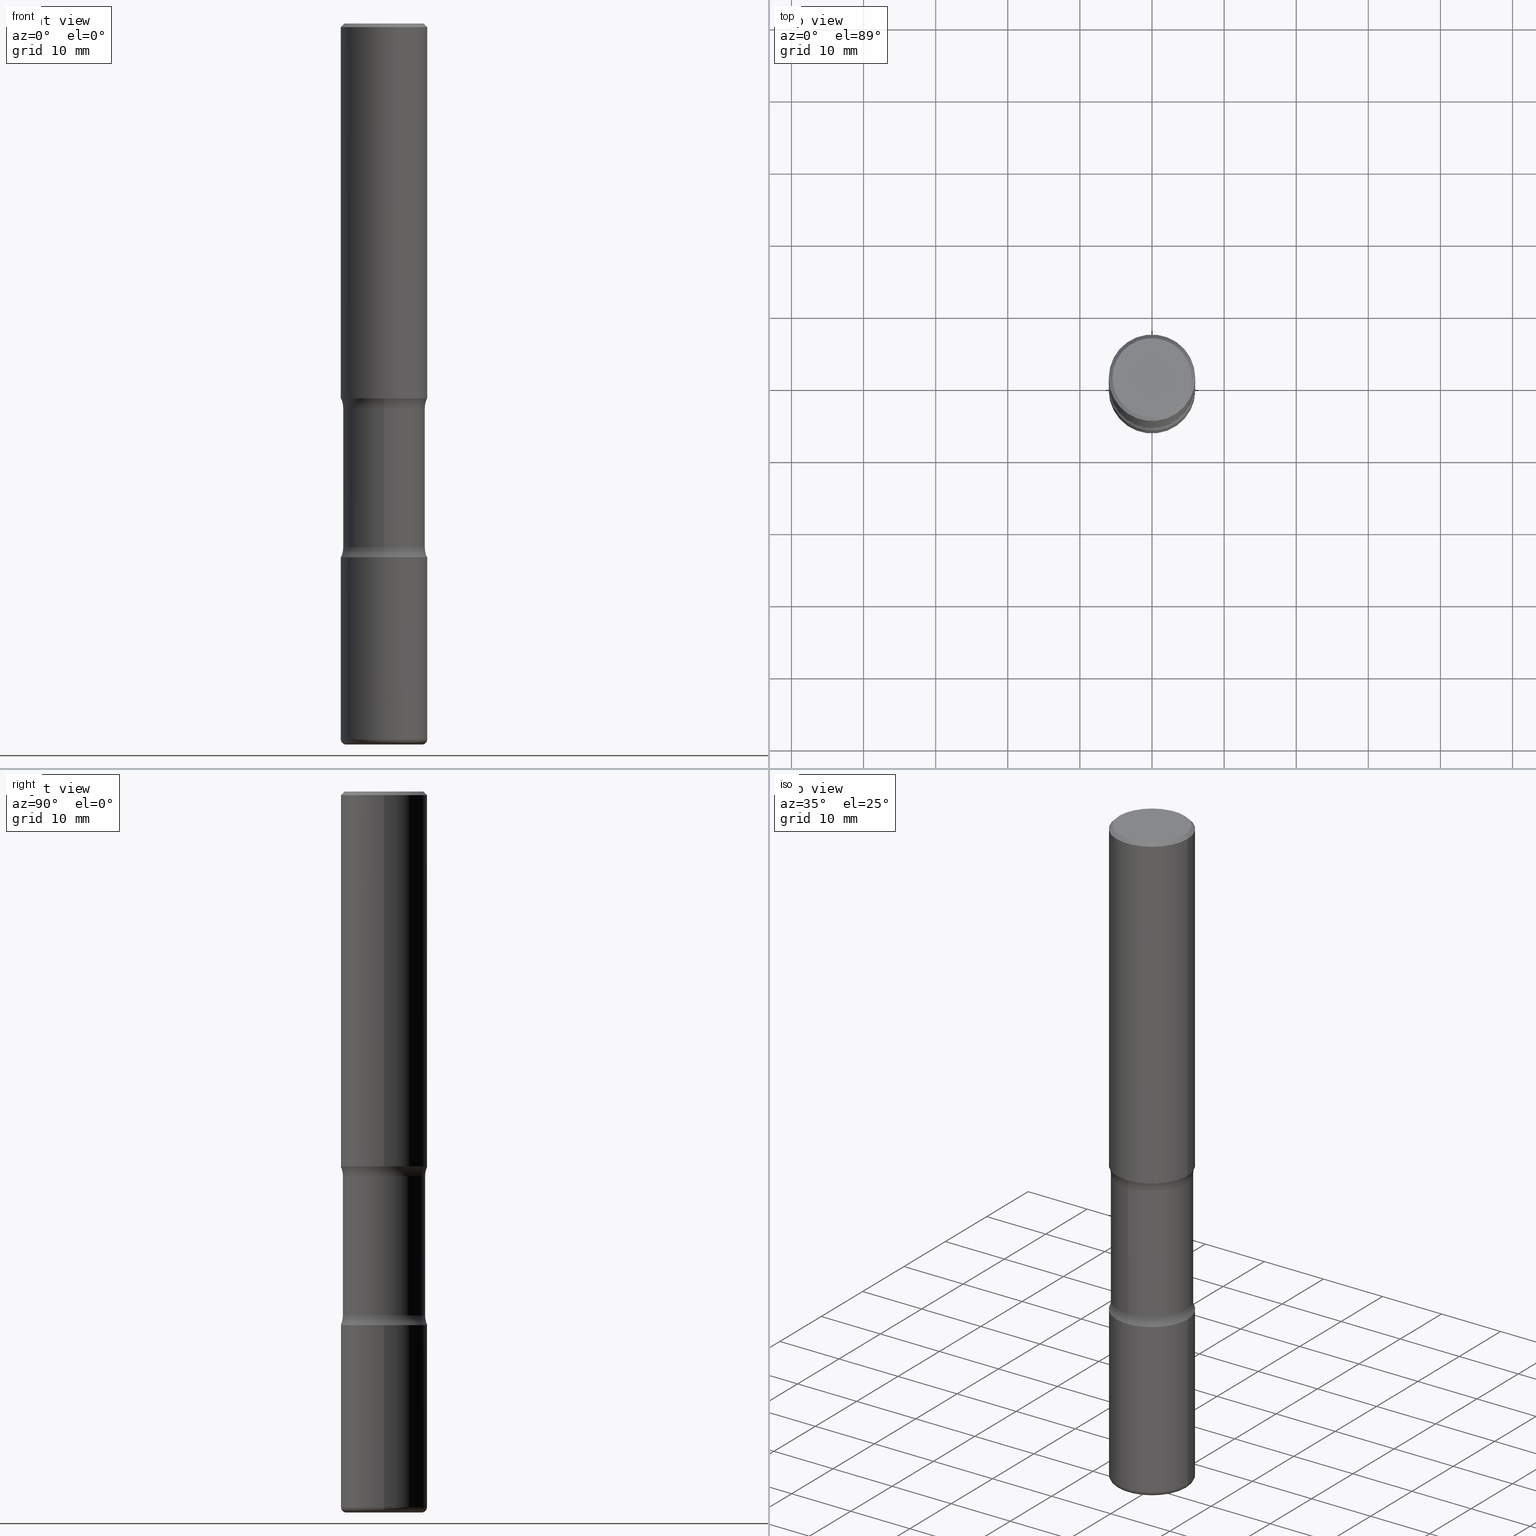
[diagram: canonical four-view strip — front | top / right | iso, engineering-drawing reading convention]
A machine part, canonical four-view strip (front | top / right | iso — engineering-drawing reading convention). The complete STEP part file that produces these views, byte-faithful:
ISO-10303-21;
HEADER;
FILE_DESCRIPTION (( 'STEP AP203' ),
    '1' );
FILE_NAME ('47692.STEP',
    '2024-03-02T07:16:59',
    ( '' ),
    ( '' ),
    'SwSTEP 2.0',
    'SolidWorks 2023',
    '' );
FILE_SCHEMA (( 'CONFIG_CONTROL_DESIGN' ));
ENDSEC;

DATA;
#1 = DIRECTION ( 'NONE',  ( -2.445468806185136597E-29, 3.491481338843145583E-15, 1.000000000000000000 ) ) ;
#2 = EDGE_LOOP ( 'NONE', ( #503, #495, #133, #348 ) ) ;
#3 = ORIENTED_EDGE ( 'NONE', *, *, #37, .F. ) ;
#4 = ORIENTED_EDGE ( 'NONE', *, *, #148, .T. ) ;
#5 = DIRECTION ( 'NONE',  ( 1.000000000000000000, -6.982962677686266711E-15, 4.876217060660159599E-29 ) ) ;
#6 = CIRCLE ( 'NONE', #163, 0.2362000000000002431 ) ;
#7 = PERSON_AND_ORGANIZATION_ROLE ( 'creator' ) ;
#8 = CARTESIAN_POINT ( 'NONE',  ( -0.2362000000000002153, 1.678301941865358169E-15, -1.161852468318209878E-29 ) ) ;
#9 = CARTESIAN_POINT ( 'NONE',  ( 7.124628819939777829E-29, -1.017208173258562247E-14, -2.913400000000000212 ) ) ;
#10 = DATE_AND_TIME ( #48, #184 ) ;
#11 = DIRECTION ( 'NONE',  ( -2.445468806185136597E-29, 3.491481338843145583E-15, 1.000000000000000000 ) ) ;
#12 = PERSON_AND_ORGANIZATION ( #519, #96 ) ;
#13 = VERTEX_POINT ( 'NONE', #47 ) ;
#14 = EDGE_LOOP ( 'NONE', ( #294, #128, #289, #465 ) ) ;
#15 = DIRECTION ( 'NONE',  ( 1.000000000000000000, -6.982962677686269077E-15, 0.000000000000000000 ) ) ;
#16 = DIRECTION ( 'NONE',  ( -2.445468806185136877E-29, 3.491481338843145188E-15, 1.000000000000000000 ) ) ;
#17 = VERTEX_POINT ( 'NONE', #442 ) ;
#18 = AXIS2_PLACEMENT_3D ( 'NONE', #476, #434, #341 ) ;
#19 = AXIS2_PLACEMENT_3D ( 'NONE', #65, #240, #371 ) ;
#20 = DIRECTION ( 'NONE',  ( 2.525985086076564115E-29, -3.376177443336566513E-15, -1.000000000000000000 ) ) ;
#21 = FACE_OUTER_BOUND ( 'NONE', #193, .T. ) ;
#22 = ADVANCED_FACE ( 'NONE', ( #224 ), #552, .F. ) ;
#23 = CARTESIAN_POINT ( 'NONE',  ( 6.990709676060807691E-29, -9.993088279580958225E-15, -2.860383398826405354 ) ) ;
#24 = VERTEX_POINT ( 'NONE', #185 ) ;
#25 = CARTESIAN_POINT ( 'NONE',  ( 5.070539682259229331E-29, -7.426630284172150130E-15, -2.100216601173595432 ) ) ;
#26 = DIRECTION ( 'NONE',  ( 2.525985086076564115E-29, -3.376177443336566513E-15, -1.000000000000000000 ) ) ;
#27 = ORIENTED_EDGE ( 'NONE', *, *, #116, .F. ) ;
#28 = DIRECTION ( 'NONE',  ( 1.000000000000000000, -6.982962677686266711E-15, 4.883557194083113462E-29 ) ) ;
#29 = ADVANCED_FACE ( 'NONE', ( #257 ), #188, .F. ) ;
#30 = AXIS2_PLACEMENT_3D ( 'NONE', #187, #11, #320 ) ;
#31 = CIRCLE ( 'NONE', #560, 0.2243999999999999606 ) ;
#32 = CARTESIAN_POINT ( 'NONE',  ( -1.043851414335219820E-46, 1.490343170380447200E-32, 4.268512490100411279E-18 ) ) ;
#33 = EDGE_CURVE ( 'NONE', #398, #160, #290, .T. ) ;
#34 = ADVANCED_FACE ( 'NONE', ( #352 ), #81, .T. ) ;
#35 = CARTESIAN_POINT ( 'NONE',  ( -0.2361999999999998823, 1.579546157692632438E-15, -0.02000000000000006981 ) ) ;
#36 = CIRCLE ( 'NONE', #205, 0.2362000000000002431 ) ;
#37 = EDGE_CURVE ( 'NONE', #227, #372, #523, .T. ) ;
#38 = APPROVAL_PERSON_ORGANIZATION ( #67, #344, #415 ) ;
#39 = TOROIDAL_SURFACE ( 'NONE', #361, 0.3493999999999999884, 0.1250000000000000000 ) ;
#40 = CARTESIAN_POINT ( 'NONE',  ( 0.000000000000000000, 0.000000000000000000, 0.000000000000000000 ) ) ;
#41 = PLANE ( 'NONE',  #18 ) ;
#42 = DIRECTION ( 'NONE',  ( 2.525985086076564115E-29, -3.376177443336566513E-15, -1.000000000000000000 ) ) ;
#43 = ORIENTED_EDGE ( 'NONE', *, *, #33, .T. ) ;
#44 = DIRECTION ( 'NONE',  ( 6.982962677686265922E-15, 1.000000000000000000, -3.376177443336566513E-15 ) ) ;
#45 = ORIENTED_EDGE ( 'NONE', *, *, #500, .T. ) ;
#46 = ORIENTED_EDGE ( 'NONE', *, *, #500, .F. ) ;
#47 = CARTESIAN_POINT ( 'NONE',  ( -1.620449627073587747E-15, -0.2362000000000074318, -2.047199999999999243 ) ) ;
#48 = CALENDAR_DATE ( 2024, 2, 3 ) ;
#49 = AXIS2_PLACEMENT_3D ( 'NONE', #478, #356, #527 ) ;
#50 = AXIS2_PLACEMENT_3D ( 'NONE', #239, #20, #314 ) ;
#51 = ORIENTED_EDGE ( 'NONE', *, *, #180, .F. ) ;
#52 = APPROVAL_STATUS ( 'not_yet_approved' ) ;
#53 = ORIENTED_EDGE ( 'NONE', *, *, #457, .T. ) ;
#54 = DIRECTION ( 'NONE',  ( -2.445468806185136597E-29, 3.491481338843145583E-15, 1.000000000000000000 ) ) ;
#55 = DIRECTION ( 'NONE',  ( 6.982962677686265922E-15, 1.000000000000000000, -2.434802133390609421E-15 ) ) ;
#56 = DIRECTION ( 'NONE',  ( 1.000000000000000000, -6.982962677686267499E-15, 0.000000000000000000 ) ) ;
#57 = CARTESIAN_POINT ( 'NONE',  ( 1.566976824872894642E-15, 0.2243999999999863049, -3.937000000000000721 ) ) ;
#58 = ORIENTED_EDGE ( 'NONE', *, *, #329, .T. ) ;
#59 = AXIS2_PLACEMENT_3D ( 'NONE', #68, #26, #55 ) ;
#60 = AXIS2_PLACEMENT_3D ( 'NONE', #118, #186, #146 ) ;
#61 = CARTESIAN_POINT ( 'NONE',  ( 0.2361999999999998823, -1.690279253850498179E-15, -0.02000000000000006981 ) ) ;
#62 = VERTEX_POINT ( 'NONE', #429 ) ;
#63 = APPROVAL ( #52, 'UNSPECIFIED' ) ;
#64 = CYLINDRICAL_SURFACE ( 'NONE', #244, 0.2362000000000002153 ) ;
#65 = CARTESIAN_POINT ( 'NONE',  ( 9.627810689950881427E-29, -1.374596203102546184E-14, -3.936999999999999389 ) ) ;
#66 = EDGE_LOOP ( 'NONE', ( #3, #213, #4, #406 ) ) ;
#67 = PERSON_AND_ORGANIZATION ( #519, #96 ) ;
#68 = CARTESIAN_POINT ( 'NONE',  ( 6.990709676060807691E-29, -9.993088279580958225E-15, -2.860383398826405354 ) ) ;
#69 = ADVANCED_FACE ( 'NONE', ( #513 ), #436, .T. ) ;
#70 = APPROVAL_DATE_TIME ( #328, #344 ) ;
#71 = AXIS2_PLACEMENT_3D ( 'NONE', #470, #394, #137 ) ;
#72 = AXIS2_PLACEMENT_3D ( 'NONE', #448, #203, #56 ) ;
#73 = CARTESIAN_POINT ( 'NONE',  ( 0.2062000000000002442, -1.508110449499907983E-14, -3.907000000000000028 ) ) ;
#74 = EDGE_CURVE ( 'NONE', #17, #105, #173, .T. ) ;
#75 = CARTESIAN_POINT ( 'NONE',  ( 1.566976824872867821E-15, 0.2243999999999899686, -2.860383398826405799 ) ) ;
#76 = SHAPE_DEFINITION_REPRESENTATION ( #337, #555 ) ;
#77 = CARTESIAN_POINT ( 'NONE',  ( 5.006363740022212241E-29, -7.147760596879688202E-15, -2.047200000000000131 ) ) ;
#78 = VERTEX_POINT ( 'NONE', #217 ) ;
#79 = DIRECTION ( 'NONE',  ( -2.445468806185136877E-29, 3.491481338843145188E-15, 1.000000000000000000 ) ) ;
#80 = CYLINDRICAL_SURFACE ( 'NONE', #30, 0.2361999999999999933 ) ;
#81 = CYLINDRICAL_SURFACE ( 'NONE', #418, 0.2243999999999999329 ) ;
#82 = AXIS2_PLACEMENT_3D ( 'NONE', #85, #261, #5 ) ;
#83 = VERTEX_POINT ( 'NONE', #343 ) ;
#84 =( GEOMETRIC_REPRESENTATION_CONTEXT ( 3 ) GLOBAL_UNCERTAINTY_ASSIGNED_CONTEXT ( ( #121 ) ) GLOBAL_UNIT_ASSIGNED_CONTEXT ( ( #286, #482, #530 ) ) REPRESENTATION_CONTEXT ( 'NONE', 'WORKASPACE' ) );
#85 = CARTESIAN_POINT ( 'NONE',  ( -1.043851414335219820E-46, 1.490343170380447200E-32, 4.268512490100411279E-18 ) ) ;
#86 = DIRECTION ( 'NONE',  ( 2.525985086076564115E-29, -3.376177443336566513E-15, -1.000000000000000000 ) ) ;
#87 = EDGE_LOOP ( 'NONE', ( #533, #327, #45, #392 ) ) ;
#88 = ADVANCED_FACE ( 'NONE', ( #481 ), #296, .T. ) ;
#89 = APPLICATION_CONTEXT ( 'configuration controlled 3d designs of mechanical parts and assemblies' ) ;
#90 = ORIENTED_EDGE ( 'NONE', *, *, #350, .T. ) ;
#91 = DIRECTION ( 'NONE',  ( 0.7071067811865472397, -7.319954787623254468E-15, -0.7071067811865477948 ) ) ;
#92 = DIRECTION ( 'NONE',  ( 2.525985086076564115E-29, -3.376177443336566513E-15, -1.000000000000000000 ) ) ;
#93 = CARTESIAN_POINT ( 'NONE',  ( 0.2361999999999999933, -1.649375784469496131E-15, 1.151752954443000088E-29 ) ) ;
#94 = DIRECTION ( 'NONE',  ( 1.000000000000000000, -6.860497997771530774E-15, 4.842210945089756248E-29 ) ) ;
#95 = AXIS2_PLACEMENT_3D ( 'NONE', #317, #142, #354 ) ;
#96 = ORGANIZATION ( 'UNSPECIFIED', 'UNSPECIFIED', '' ) ;
#97 = CARTESIAN_POINT ( 'NONE',  ( 7.124628819939777829E-29, -1.017208173258562247E-14, -2.913400000000000212 ) ) ;
#98 = CARTESIAN_POINT ( 'NONE',  ( 7.124628819939777829E-29, -1.017208173258562247E-14, -2.913400000000000212 ) ) ;
#99 = CARTESIAN_POINT ( 'NONE',  ( -0.2361999999999998823, 1.579546157692632438E-15, -0.02000000000000006981 ) ) ;
#100 = ORIENTED_EDGE ( 'NONE', *, *, #285, .T. ) ;
#101 = DIRECTION ( 'NONE',  ( -2.438088387897960049E-29, 3.491481338843145188E-15, 1.000000000000000000 ) ) ;
#102 = APPROVAL_STATUS ( 'not_yet_approved' ) ;
#103 = CARTESIAN_POINT ( 'NONE',  ( 6.994978375559792251E-29, -9.986975258939122984E-15, -2.860383398826405354 ) ) ;
#104 = LINE ( 'NONE', #93, #256 ) ;
#105 = VERTEX_POINT ( 'NONE', #516 ) ;
#106 = EDGE_CURVE ( 'NONE', #127, #397, #485, .T. ) ;
#107 = CARTESIAN_POINT ( 'NONE',  ( 5.070539682259229331E-29, -7.426630284172150130E-15, -2.100216601173595432 ) ) ;
#108 = DATE_AND_TIME ( #497, #206 ) ;
#109 = ORIENTED_EDGE ( 'NONE', *, *, #116, .T. ) ;
#110 = VECTOR ( 'NONE', #79, 39.37007874015748143 ) ;
#111 = AXIS2_PLACEMENT_3D ( 'NONE', #489, #190, #359 ) ;
#112 = CARTESIAN_POINT ( 'NONE',  ( 4.936620538380257512E-29, -7.247636831167487464E-15, -2.047200000000000131 ) ) ;
#113 = LINE ( 'NONE', #360, #332 ) ;
#114 = COORDINATED_UNIVERSAL_TIME_OFFSET ( 5, 0, .BEHIND. ) ;
#115 = ORIENTED_EDGE ( 'NONE', *, *, #551, .F. ) ;
#116 = EDGE_CURVE ( 'NONE', #105, #372, #194, .T. ) ;
#117 = DATE_AND_TIME ( #505, #388 ) ;
#118 = CARTESIAN_POINT ( 'NONE',  ( 0.000000000000000000, 0.000000000000000000, 0.000000000000000000 ) ) ;
#119 = CIRCLE ( 'NONE', #488, 0.2361999999999998823 ) ;
#120 = CARTESIAN_POINT ( 'NONE',  ( 0.000000000000000000, 0.000000000000000000, 0.000000000000000000 ) ) ;
#121 = UNCERTAINTY_MEASURE_WITH_UNIT (LENGTH_MEASURE( 1.000000000000000082E-05 ), #286, 'distance_accuracy_value', 'NONE');
#122 = DIRECTION ( 'NONE',  ( 1.000000000000000000, -6.982962677686277755E-15, 0.000000000000000000 ) ) ;
#123 = APPROVAL_DATE_TIME ( #380, #218 ) ;
#124 = CARTESIAN_POINT ( 'NONE',  ( 4.936620538380257512E-29, -7.247636831167487464E-15, -2.047200000000000131 ) ) ;
#125 = CARTESIAN_POINT ( 'NONE',  ( 4.890937612370289799E-31, -6.982962677686315028E-17, -0.02000000000000006981 ) ) ;
#126 = EDGE_CURVE ( 'NONE', #189, #397, #119, .T. ) ;
#127 = VERTEX_POINT ( 'NONE', #230 ) ;
#128 = ORIENTED_EDGE ( 'NONE', *, *, #207, .T. ) ;
#129 = EDGE_CURVE ( 'NONE', #273, #372, #221, .T. ) ;
#130 = CARTESIAN_POINT ( 'NONE',  ( 7.124628819939777829E-29, -1.017208173258562247E-14, -2.913400000000000212 ) ) ;
#131 = ORIENTED_EDGE ( 'NONE', *, *, #423, .F. ) ;
#132 = EDGE_LOOP ( 'NONE', ( #306, #363 ) ) ;
#133 = ORIENTED_EDGE ( 'NONE', *, *, #277, .T. ) ;
#134 = LOCAL_TIME ( 2, 16, 59.00000000000000000, #376 ) ;
#135 = EDGE_CURVE ( 'NONE', #372, #273, #487, .T. ) ;
#136 = VERTEX_POINT ( 'NONE', #417 ) ;
#137 = DIRECTION ( 'NONE',  ( -1.000000000000000000, 6.982962677686265922E-15, -4.876176775795935793E-29 ) ) ;
#138 = DIRECTION ( 'NONE',  ( -2.445468806185136597E-29, 3.491481338843145583E-15, 1.000000000000000000 ) ) ;
#139 = DIRECTION ( 'NONE',  ( 1.000000000000000000, -6.982962677686266711E-15, 4.876176775795936353E-29 ) ) ;
#140 = DATE_TIME_ROLE ( 'creation_date' ) ;
#141 = APPLICATION_PROTOCOL_DEFINITION ( 'international standard', 'config_control_design', 1994, #466 ) ;
#142 = DIRECTION ( 'NONE',  ( 2.445468806185136597E-29, -3.491481338843145583E-15, -1.000000000000000000 ) ) ;
#143 = APPROVAL_ROLE ( '' ) ;
#144 = DIRECTION ( 'NONE',  ( -2.525985086076564115E-29, 3.376177443336566513E-15, 1.000000000000000000 ) ) ;
#145 = CIRCLE ( 'NONE', #502, 0.2362000000000001321 ) ;
#146 = DIRECTION ( 'NONE',  ( 1.000000000000000000, 0.000000000000000000, 0.000000000000000000 ) ) ;
#147 = CYLINDRICAL_SURFACE ( 'NONE', #158, 0.2243999999999999329 ) ;
#148 = EDGE_CURVE ( 'NONE', #78, #273, #197, .T. ) ;
#149 = ORIENTED_EDGE ( 'NONE', *, *, #215, .T. ) ;
#150 = DIRECTION ( 'NONE',  ( -1.000000000000000000, 6.982962677686265922E-15, -4.876176775795935793E-29 ) ) ;
#151 = DIRECTION ( 'NONE',  ( -2.445468806185136597E-29, 3.491481338843145583E-15, 1.000000000000000000 ) ) ;
#152 = ORIENTED_EDGE ( 'NONE', *, *, #450, .F. ) ;
#153 = DIRECTION ( 'NONE',  ( 6.982962677686265922E-15, 1.000000000000000000, -3.469747663417773452E-15 ) ) ;
#154 = DIRECTION ( 'NONE',  ( -2.445468806185136597E-29, 3.491481338843145583E-15, 1.000000000000000000 ) ) ;
#155 = MANIFOLD_SOLID_BREP ( 'Body-Move/Copy2[2]', #416 ) ;
#156 = CLOSED_SHELL ( 'NONE', ( #447, #389, #22, #342, #333, #29, #427, #34 ) ) ;
#157 = CIRCLE ( 'NONE', #553, 0.2161999999999998368 ) ;
#158 = AXIS2_PLACEMENT_3D ( 'NONE', #504, #159, #490 ) ;
#159 = DIRECTION ( 'NONE',  ( 2.525985086076564115E-29, -3.376177443336566513E-15, -1.000000000000000000 ) ) ;
#160 = VERTEX_POINT ( 'NONE', #275 ) ;
#161 = CALENDAR_DATE ( 2024, 2, 3 ) ;
#162 = FACE_OUTER_BOUND ( 'NONE', #528, .T. ) ;
#163 = AXIS2_PLACEMENT_3D ( 'NONE', #112, #92, #153 ) ;
#164 = CC_DESIGN_APPROVAL ( #344, ( #262 ) ) ;
#165 = DIRECTION ( 'NONE',  ( -6.982962677686266711E-15, -1.000000000000000000, 3.491481338843145583E-15 ) ) ;
#166 =( LENGTH_UNIT ( ) NAMED_UNIT ( * ) SI_UNIT ( $, .METRE. ) );
#167 = DIRECTION ( 'NONE',  ( 1.000000000000000000, -6.982962677686269077E-15, 0.000000000000000000 ) ) ;
#168 = CC_DESIGN_PERSON_AND_ORGANIZATION_ASSIGNMENT ( #524, #330, ( #211 ) ) ;
#169 = ORIENTED_EDGE ( 'NONE', *, *, #298, .F. ) ;
#170 = DIRECTION ( 'NONE',  ( -2.445468806185136597E-29, 3.491481338843145583E-15, 1.000000000000000000 ) ) ;
#171 = VERTEX_POINT ( 'NONE', #365 ) ;
#172 = EDGE_CURVE ( 'NONE', #17, #273, #383, .T. ) ;
#173 = CIRCLE ( 'NONE', #308, 0.2362000000000001321 ) ;
#174 = AXIS2_PLACEMENT_3D ( 'NONE', #97, #370, #15 ) ;
#175 = ORIENTED_EDGE ( 'NONE', *, *, #537, .F. ) ;
#176 = DIRECTION ( 'NONE',  ( 1.000000000000000000, -6.982962677686265922E-15, 0.000000000000000000 ) ) ;
#177 = DIRECTION ( 'NONE',  ( 6.982962677686265922E-15, 1.000000000000000000, -2.434802133390609815E-15 ) ) ;
#178 = EDGE_LOOP ( 'NONE', ( #222, #109, #400, #366 ) ) ;
#179 = EDGE_LOOP ( 'NONE', ( #303, #169 ) ) ;
#180 = EDGE_CURVE ( 'NONE', #127, #62, #157, .T. ) ;
#181 = ORIENTED_EDGE ( 'NONE', *, *, #37, .T. ) ;
#182 = AXIS2_PLACEMENT_3D ( 'NONE', #522, #138, #176 ) ;
#183 = ORIENTED_EDGE ( 'NONE', *, *, #212, .F. ) ;
#184 = LOCAL_TIME ( 2, 16, 59.00000000000000000, #351 ) ;
#185 = CARTESIAN_POINT ( 'NONE',  ( 1.649375784469546815E-15, 0.2361999999999930266, -2.047200000000001019 ) ) ;
#186 = DIRECTION ( 'NONE',  ( 0.000000000000000000, 0.000000000000000000, 1.000000000000000000 ) ) ;
#187 = CARTESIAN_POINT ( 'NONE',  ( 0.000000000000000000, 0.000000000000000000, 0.000000000000000000 ) ) ;
#188 = PLANE ( 'NONE',  #544 ) ;
#189 = VERTEX_POINT ( 'NONE', #99 ) ;
#190 = DIRECTION ( 'NONE',  ( 2.438088387897960049E-29, -3.491481338843145188E-15, -1.000000000000000000 ) ) ;
#191 = DIRECTION ( 'NONE',  ( 1.000000000000000000, -6.982962677686266711E-15, 4.883557194083113462E-29 ) ) ;
#192 = SECURITY_CLASSIFICATION_LEVEL ( 'unclassified' ) ;
#193 = EDGE_LOOP ( 'NONE', ( #283, #43, #276, #508 ) ) ;
#194 = CIRCLE ( 'NONE', #299, 0.1250000000000000000 ) ;
#195 = TOROIDAL_SURFACE ( 'NONE', #339, 0.2062000000000002442, 0.02999999999999969705 ) ;
#196 = CARTESIAN_POINT ( 'NONE',  ( 9.627810689950881427E-29, -1.374596203102546184E-14, -3.936999999999999389 ) ) ;
#197 = LINE ( 'NONE', #57, #331 ) ;
#198 = ORIENTED_EDGE ( 'NONE', *, *, #316, .T. ) ;
#199 = DIRECTION ( 'NONE',  ( 6.982962677686265922E-15, 1.000000000000000000, -3.652203200085913934E-15 ) ) ;
#200 = DIRECTION ( 'NONE',  ( 2.525985086076564115E-29, -3.376177443336566513E-15, -1.000000000000000000 ) ) ;
#201 = CARTESIAN_POINT ( 'NONE',  ( -0.2361999999999999933, 1.678301941865356591E-15, -1.161852468318208757E-29 ) ) ;
#202 = CARTESIAN_POINT ( 'NONE',  ( 0.000000000000000000, 0.000000000000000000, 0.000000000000000000 ) ) ;
#203 = DIRECTION ( 'NONE',  ( -2.445468806185136597E-29, 3.491481338843145583E-15, 1.000000000000000000 ) ) ;
#204 = ORIENTED_EDGE ( 'NONE', *, *, #382, .F. ) ;
#205 = AXIS2_PLACEMENT_3D ( 'NONE', #541, #154, #322 ) ;
#206 = LOCAL_TIME ( 2, 16, 59.00000000000000000, #368 ) ;
#207 = EDGE_CURVE ( 'NONE', #253, #189, #498, .T. ) ;
#208 = ORIENTED_EDGE ( 'NONE', *, *, #207, .F. ) ;
#209 = CIRCLE ( 'NONE', #255, 0.2362000000000002431 ) ;
#210 = CIRCLE ( 'NONE', #347, 0.2362000000000001321 ) ;
#211 = PRODUCT ( '47692', '47692', '', ( #437 ) ) ;
#212 = EDGE_CURVE ( 'NONE', #160, #171, #36, .T. ) ;
#213 = ORIENTED_EDGE ( 'NONE', *, *, #382, .T. ) ;
#214 = DIRECTION ( 'NONE',  ( -6.982962677686265922E-15, -1.000000000000000000, 3.376177443336566513E-15 ) ) ;
#215 = EDGE_CURVE ( 'NONE', #62, #127, #424, .T. ) ;
#216 = DIRECTION ( 'NONE',  ( 6.982962677686265922E-15, 1.000000000000000000, -2.313165108945183485E-15 ) ) ;
#217 = CARTESIAN_POINT ( 'NONE',  ( 1.566976824872848494E-15, 0.2243999999999925499, -2.100216601173596320 ) ) ;
#218 = APPROVAL ( #355, 'UNSPECIFIED' ) ;
#219 = DIRECTION ( 'NONE',  ( 6.982962677686265922E-15, 1.000000000000000000, -3.469747663417773452E-15 ) ) ;
#220 = AXIS2_PLACEMENT_3D ( 'NONE', #402, #345, #349 ) ;
#221 = CIRCLE ( 'NONE', #517, 0.2243999999999999606 ) ;
#222 = ORIENTED_EDGE ( 'NONE', *, *, #473, .F. ) ;
#223 = CIRCLE ( 'NONE', #293, 0.2062000000000002442 ) ;
#224 = FACE_OUTER_BOUND ( 'NONE', #254, .T. ) ;
#225 = EDGE_LOOP ( 'NONE', ( #477, #471 ) ) ;
#226 = ADVANCED_FACE ( 'NONE', ( #409 ), #543, .F. ) ;
#227 = VERTEX_POINT ( 'NONE', #242 ) ;
#228 = DIRECTION ( 'NONE',  ( -2.445468806185136597E-29, 3.491481338843145583E-15, 1.000000000000000000 ) ) ;
#229 = DIRECTION ( 'NONE',  ( 2.525985086076564115E-29, -3.376177443336566513E-15, -1.000000000000000000 ) ) ;
#230 = CARTESIAN_POINT ( 'NONE',  ( 0.2161999999999998368, -1.586759460484351002E-15, 4.268512490111238857E-18 ) ) ;
#231 = EDGE_LOOP ( 'NONE', ( #393, #260, #536, #183 ) ) ;
#232 = CARTESIAN_POINT ( 'NONE',  ( -1.579972688886713168E-15, -0.2244000000000099804, -2.860383398826404466 ) ) ;
#233 = CARTESIAN_POINT ( 'NONE',  ( -2.397058000421320660E-15, -0.3494000000000072048, -2.100216601173594544 ) ) ;
#234 = ORIENTED_EDGE ( 'NONE', *, *, #129, .F. ) ;
#235 = CIRCLE ( 'NONE', #174, 0.2362000000000001321 ) ;
#236 = LOCAL_TIME ( 2, 16, 59.00000000000000000, #312 ) ;
#237 = CARTESIAN_POINT ( 'NONE',  ( -0.2062000000000002442, -1.212186927944147467E-14, -3.936999999999999389 ) ) ;
#238 = EDGE_CURVE ( 'NONE', #554, #253, #346, .T. ) ;
#239 = CARTESIAN_POINT ( 'NONE',  ( 6.994978375559792251E-29, -9.986975258939122984E-15, -2.860383398826405354 ) ) ;
#240 = DIRECTION ( 'NONE',  ( -2.445468806185136597E-29, 3.491481338843145583E-15, 1.000000000000000000 ) ) ;
#241 = DIRECTION ( 'NONE',  ( -1.000000000000000000, 6.982962677686267499E-15, 0.000000000000000000 ) ) ;
#242 = CARTESIAN_POINT ( 'NONE',  ( -1.579972688886734072E-15, -0.2244000000000073713, -2.100216601173594544 ) ) ;
#243 = APPLICATION_PROTOCOL_DEFINITION ( 'international standard', 'config_control_design', 1994, #89 ) ;
#244 = AXIS2_PLACEMENT_3D ( 'NONE', #202, #228, #404 ) ;
#245 = VECTOR ( 'NONE', #91, 39.37007874015748143 ) ;
#246 = FACE_OUTER_BOUND ( 'NONE', #335, .T. ) ;
#247 = LINE ( 'NONE', #35, #472 ) ;
#248 = VECTOR ( 'NONE', #369, 39.37007874015748143 ) ;
#249 = DIRECTION ( 'NONE',  ( 2.525985086076564115E-29, -3.376177443336566513E-15, -1.000000000000000000 ) ) ;
#250 = ADVANCED_FACE ( 'NONE', ( #162 ), #379, .T. ) ;
#251 = ADVANCED_FACE ( 'NONE', ( #246 ), #509, .T. ) ;
#252 = FACE_OUTER_BOUND ( 'NONE', #446, .T. ) ;
#253 = VERTEX_POINT ( 'NONE', #288 ) ;
#254 = EDGE_LOOP ( 'NONE', ( #204, #304, #496, #131 ) ) ;
#255 = AXIS2_PLACEMENT_3D ( 'NONE', #124, #249, #219 ) ;
#256 = VECTOR ( 'NONE', #16, 39.37007874015748143 ) ;
#257 = FACE_OUTER_BOUND ( 'NONE', #225, .T. ) ;
#258 = DIRECTION ( 'NONE',  ( 2.525985086076564115E-29, -3.376177443336566513E-15, -1.000000000000000000 ) ) ;
#259 = CARTESIAN_POINT ( 'NONE',  ( -1.539495750699834052E-15, -0.2244000000000135608, -3.936999999999999389 ) ) ;
#260 = ORIENTED_EDGE ( 'NONE', *, *, #537, .T. ) ;
#261 = DIRECTION ( 'NONE',  ( -2.445468806185136597E-29, 3.491481338843145583E-15, 1.000000000000000000 ) ) ;
#262 = PRODUCT_DEFINITION ( 'UNKNOWN', '', #475, #307 ) ;
#263 = DIRECTION ( 'NONE',  ( -2.445468806185136597E-29, 3.491481338843145583E-15, 1.000000000000000000 ) ) ;
#264 = CARTESIAN_POINT ( 'NONE',  ( -2.397058000421302516E-15, -0.3494000000000099249, -2.860383398826404022 ) ) ;
#265 = DIRECTION ( 'NONE',  ( -6.982962677686264344E-15, -1.000000000000000000, 0.000000000000000000 ) ) ;
#266 = DIRECTION ( 'NONE',  ( 6.982962677686265922E-15, 1.000000000000000000, -2.313165108945183485E-15 ) ) ;
#267 = CLOSED_SHELL ( 'NONE', ( #250, #491, #88, #396, #407, #468 ) ) ;
#268 = CIRCLE ( 'NONE', #529, 0.2362000000000001321 ) ;
#269 = EDGE_CURVE ( 'NONE', #449, #171, #547, .T. ) ;
#270 = DIRECTION ( 'NONE',  ( 6.860497997771529985E-15, 1.000000000000000000, 0.000000000000000000 ) ) ;
#271 = FACE_OUTER_BOUND ( 'NONE', #87, .T. ) ;
#272 = APPROVAL_DATE_TIME ( #108, #63 ) ;
#273 = VERTEX_POINT ( 'NONE', #75 ) ;
#274 = DIRECTION ( 'NONE',  ( -2.445468806185136877E-29, 3.491481338843145188E-15, 1.000000000000000000 ) ) ;
#275 = CARTESIAN_POINT ( 'NONE',  ( -0.2362000000000000766, -1.196291564899481365E-14, -3.907000000000000028 ) ) ;
#276 = ORIENTED_EDGE ( 'NONE', *, *, #329, .F. ) ;
#277 = EDGE_CURVE ( 'NONE', #62, #189, #247, .T. ) ;
#278 = CARTESIAN_POINT ( 'NONE',  ( 9.554446625765329033E-29, -1.364121759086017004E-14, -3.907000000000000028 ) ) ;
#279 = PERSON_AND_ORGANIZATION ( #519, #96 ) ;
#280 = DIRECTION ( 'NONE',  ( 2.525985086076564115E-29, -3.376177443336566513E-15, -1.000000000000000000 ) ) ;
#281 = ORIENTED_EDGE ( 'NONE', *, *, #423, .T. ) ;
#282 = AXIS2_PLACEMENT_3D ( 'NONE', #73, #165, #122 ) ;
#283 = ORIENTED_EDGE ( 'NONE', *, *, #551, .T. ) ;
#284 = DATE_TIME_ROLE ( 'classification_date' ) ;
#285 = EDGE_CURVE ( 'NONE', #253, #554, #268, .T. ) ;
#286 =( CONVERSION_BASED_UNIT ( 'INCH', #358 ) LENGTH_UNIT ( ) NAMED_UNIT ( #512 ) );
#287 = CIRCLE ( 'NONE', #559, 0.1249999999999999029 ) ;
#288 = CARTESIAN_POINT ( 'NONE',  ( -0.2362000000000001598, -1.930493169962915017E-15, -2.047200000000000131 ) ) ;
#289 = ORIENTED_EDGE ( 'NONE', *, *, #525, .F. ) ;
#290 = CIRCLE ( 'NONE', #49, 0.02999999999999967970 ) ;
#291 = CC_DESIGN_DATE_AND_TIME_ASSIGNMENT ( #10, #140, ( #262 ) ) ;
#292 = TOROIDAL_SURFACE ( 'NONE', #50, 0.3493999999999999884, 0.1250000000000000000 ) ;
#293 = AXIS2_PLACEMENT_3D ( 'NONE', #196, #456, #440 ) ;
#294 = ORIENTED_EDGE ( 'NONE', *, *, #238, .T. ) ;
#295 = ORIENTED_EDGE ( 'NONE', *, *, #381, .T. ) ;
#296 = PLANE ( 'NONE',  #71 ) ;
#297 = PERSON_AND_ORGANIZATION ( #519, #96 ) ;
#298 = EDGE_CURVE ( 'NONE', #13, #24, #209, .T. ) ;
#299 = AXIS2_PLACEMENT_3D ( 'NONE', #264, #94, #270 ) ;
#300 = SECURITY_CLASSIFICATION ( '', '', #192 ) ;
#301 = EDGE_LOOP ( 'NONE', ( #208, #100, #53, #474 ) ) ;
#302 = CARTESIAN_POINT ( 'NONE',  ( 5.088323202950023588E-29, -7.401163270367792936E-15, -2.100216601173595432 ) ) ;
#303 = ORIENTED_EDGE ( 'NONE', *, *, #381, .F. ) ;
#304 = ORIENTED_EDGE ( 'NONE', *, *, #467, .T. ) ;
#305 = DIRECTION ( 'NONE',  ( -1.000000000000000000, 6.982962677686265922E-15, -4.883557194083112340E-29 ) ) ;
#306 = ORIENTED_EDGE ( 'NONE', *, *, #238, .F. ) ;
#307 = DESIGN_CONTEXT ( 'detailed design', #466, 'design' ) ;
#308 = AXIS2_PLACEMENT_3D ( 'NONE', #435, #42, #216 ) ;
#309 = DIRECTION ( 'NONE',  ( 6.982962677686265922E-15, 1.000000000000000000, -3.376177443336566513E-15 ) ) ;
#310 = AXIS2_PLACEMENT_3D ( 'NONE', #535, #413, #549 ) ;
#311 = CIRCLE ( 'NONE', #19, 0.2062000000000002442 ) ;
#312 = COORDINATED_UNIVERSAL_TIME_OFFSET ( 5, 0, .BEHIND. ) ;
#313 = CC_DESIGN_APPROVAL ( #63, ( #475 ) ) ;
#314 = DIRECTION ( 'NONE',  ( 6.982962677686265922E-15, 1.000000000000000000, -3.376177443336566513E-15 ) ) ;
#315 = ORIENTED_EDGE ( 'NONE', *, *, #106, .T. ) ;
#316 = EDGE_CURVE ( 'NONE', #160, #83, #431, .T. ) ;
#317 = CARTESIAN_POINT ( 'NONE',  ( 4.890937612370289799E-31, -6.982962677686315028E-17, -0.02000000000000006981 ) ) ;
#318 = PLANE ( 'NONE',  #377 ) ;
#319 = DIRECTION ( 'NONE',  ( 1.000000000000000000, -6.982962677686266711E-15, 4.876217060660159599E-29 ) ) ;
#320 = DIRECTION ( 'NONE',  ( 1.000000000000000000, -6.982962677686266711E-15, 4.876176775795936353E-29 ) ) ;
#321 = PERSON_AND_ORGANIZATION_ROLE ( 'design_supplier' ) ;
#322 = DIRECTION ( 'NONE',  ( 1.000000000000000000, -6.982962677686265922E-15, 0.000000000000000000 ) ) ;
#323 = ORIENTED_EDGE ( 'NONE', *, *, #419, .T. ) ;
#324 = CIRCLE ( 'NONE', #182, 0.2362000000000002431 ) ;
#325 = CC_DESIGN_DATE_AND_TIME_ASSIGNMENT ( #117, #284, ( #300 ) ) ;
#326 = DIRECTION ( 'NONE',  ( 2.525985086076564115E-29, -3.376177443336566513E-15, -1.000000000000000000 ) ) ;
#327 = ORIENTED_EDGE ( 'NONE', *, *, #212, .T. ) ;
#328 = DATE_AND_TIME ( #161, #134 ) ;
#329 = EDGE_CURVE ( 'NONE', #171, #160, #324, .T. ) ;
#330 = PERSON_AND_ORGANIZATION_ROLE ( 'design_owner' ) ;
#331 = VECTOR ( 'NONE', #326, 39.37007874015748143 ) ;
#332 = VECTOR ( 'NONE', #274, 39.37007874015748143 ) ;
#333 = ADVANCED_FACE ( 'NONE', ( #469 ), #41, .F. ) ;
#334 = DIRECTION ( 'NONE',  ( -2.445468806185136597E-29, 3.491481338843145583E-15, 1.000000000000000000 ) ) ;
#335 = EDGE_LOOP ( 'NONE', ( #51, #315, #403, #374 ) ) ;
#336 = DIRECTION ( 'NONE',  ( -2.445468806185136597E-29, 3.491481338843145583E-15, 1.000000000000000000 ) ) ;
#337 = PRODUCT_DEFINITION_SHAPE ( 'NONE', 'NONE',  #262 ) ;
#338 = AXIS2_PLACEMENT_3D ( 'NONE', #107, #451, #199 ) ;
#339 = AXIS2_PLACEMENT_3D ( 'NONE', #539, #54, #191 ) ;
#340 = EDGE_LOOP ( 'NONE', ( #323, #90 ) ) ;
#341 = DIRECTION ( 'NONE',  ( 6.982962677686265922E-15, 1.000000000000000000, -3.376177443336566513E-15 ) ) ;
#342 = ADVANCED_FACE ( 'NONE', ( #252 ), #463, .F. ) ;
#343 = CARTESIAN_POINT ( 'NONE',  ( -0.2362000000000001321, -1.022834771985753829E-14, -2.913400000000000212 ) ) ;
#344 = APPROVAL ( #102, 'UNSPECIFIED' ) ;
#345 = DIRECTION ( 'NONE',  ( 2.525985086076564115E-29, -3.376177443336566513E-15, -1.000000000000000000 ) ) ;
#346 = CIRCLE ( 'NONE', #430, 0.2362000000000001321 ) ;
#347 = AXIS2_PLACEMENT_3D ( 'NONE', #411, #200, #266 ) ;
#348 = ORIENTED_EDGE ( 'NONE', *, *, #126, .T. ) ;
#349 = DIRECTION ( 'NONE',  ( 6.982962677686265922E-15, 1.000000000000000000, -3.376177443336566513E-15 ) ) ;
#350 = EDGE_CURVE ( 'NONE', #83, #136, #145, .T. ) ;
#351 = COORDINATED_UNIVERSAL_TIME_OFFSET ( 5, 0, .BEHIND. ) ;
#352 = FACE_OUTER_BOUND ( 'NONE', #66, .T. ) ;
#353 = CC_DESIGN_PERSON_AND_ORGANIZATION_ASSIGNMENT ( #373, #540, ( #475 ) ) ;
#354 = DIRECTION ( 'NONE',  ( -1.000000000000000000, 6.982962677686267499E-15, 0.000000000000000000 ) ) ;
#355 = APPROVAL_STATUS ( 'not_yet_approved' ) ;
#356 = DIRECTION ( 'NONE',  ( 7.105427357601001859E-15, 1.000000000000000000, -3.491481338843145583E-15 ) ) ;
#357 = ORIENTED_EDGE ( 'NONE', *, *, #467, .F. ) ;
#358 = LENGTH_MEASURE_WITH_UNIT ( LENGTH_MEASURE( 0.02539999999999999897 ), #166 );
#359 = DIRECTION ( 'NONE',  ( -1.000000000000000000, 6.982962677686265922E-15, -4.876176775795935793E-29 ) ) ;
#360 = CARTESIAN_POINT ( 'NONE',  ( 0.2362000000000002153, -1.649375784469497708E-15, 1.151752954443001069E-29 ) ) ;
#361 = AXIS2_PLACEMENT_3D ( 'NONE', #103, #526, #309 ) ;
#362 = DIRECTION ( 'NONE',  ( -2.445468806185136597E-29, 3.491481338843145583E-15, 1.000000000000000000 ) ) ;
#363 = ORIENTED_EDGE ( 'NONE', *, *, #285, .F. ) ;
#364 = ADVANCED_FACE ( 'NONE', ( #426 ), #80, .T. ) ;
#365 = CARTESIAN_POINT ( 'NONE',  ( 0.2362000000000000766, -1.529059337532966657E-14, -3.907000000000000028 ) ) ;
#366 = ORIENTED_EDGE ( 'NONE', *, *, #172, .F. ) ;
#367 = CC_DESIGN_PERSON_AND_ORGANIZATION_ASSIGNMENT ( #550, #7, ( #262 ) ) ;
#368 = COORDINATED_UNIVERSAL_TIME_OFFSET ( 5, 0, .BEHIND. ) ;
#369 = DIRECTION ( 'NONE',  ( -2.445468806185136877E-29, 3.491481338843145188E-15, 1.000000000000000000 ) ) ;
#370 = DIRECTION ( 'NONE',  ( -2.445468806185136597E-29, 3.491481338843145583E-15, 1.000000000000000000 ) ) ;
#371 = DIRECTION ( 'NONE',  ( 1.000000000000000000, -6.982962677686265133E-15, 0.000000000000000000 ) ) ;
#372 = VERTEX_POINT ( 'NONE', #232 ) ;
#373 = PERSON_AND_ORGANIZATION ( #519, #96 ) ;
#374 = ORIENTED_EDGE ( 'NONE', *, *, #277, .F. ) ;
#375 = AXIS2_PLACEMENT_3D ( 'NONE', #278, #412, #28 ) ;
#376 = COORDINATED_UNIVERSAL_TIME_OFFSET ( 5, 0, .BEHIND. ) ;
#377 = AXIS2_PLACEMENT_3D ( 'NONE', #98, #534, #150 ) ;
#378 = ADVANCED_FACE ( 'NONE', ( #483 ), #408, .T. ) ;
#379 = CYLINDRICAL_SURFACE ( 'NONE', #452, 0.2362000000000002153 ) ;
#380 = DATE_AND_TIME ( #462, #236 ) ;
#381 = EDGE_CURVE ( 'NONE', #24, #13, #6, .T. ) ;
#382 = EDGE_CURVE ( 'NONE', #227, #78, #399, .T. ) ;
#383 = CIRCLE ( 'NONE', #310, 0.1250000000000000000 ) ;
#384 = APPROVAL_PERSON_ORGANIZATION ( #12, #218, #143 ) ;
#385 = DIRECTION ( 'NONE',  ( -0.7071067811865472397, 2.468850131082253905E-15, -0.7071067811865477948 ) ) ;
#386 = ORIENTED_EDGE ( 'NONE', *, *, #450, .T. ) ;
#387 = AXIS2_PLACEMENT_3D ( 'NONE', #302, #258, #44 ) ;
#388 = LOCAL_TIME ( 2, 16, 59.00000000000000000, #114 ) ;
#389 = ADVANCED_FACE ( 'NONE', ( #538 ), #292, .F. ) ;
#390 = CARTESIAN_POINT ( 'NONE',  ( 9.710227154047748282E-29, -1.362793696358492956E-14, -3.937000000000000277 ) ) ;
#391 = APPROVAL_ROLE ( '' ) ;
#392 = ORIENTED_EDGE ( 'NONE', *, *, #350, .F. ) ;
#393 = ORIENTED_EDGE ( 'NONE', *, *, #33, .F. ) ;
#394 = DIRECTION ( 'NONE',  ( 2.438088387897960049E-29, -3.491481338843145188E-15, -1.000000000000000000 ) ) ;
#395 = ORIENTED_EDGE ( 'NONE', *, *, #148, .F. ) ;
#396 = ADVANCED_FACE ( 'NONE', ( #410 ), #420, .T. ) ;
#397 = VERTEX_POINT ( 'NONE', #61 ) ;
#398 = VERTEX_POINT ( 'NONE', #237 ) ;
#399 = CIRCLE ( 'NONE', #338, 0.2243999999999999606 ) ;
#400 = ORIENTED_EDGE ( 'NONE', *, *, #135, .T. ) ;
#401 = PLANE ( 'NONE',  #111 ) ;
#402 = CARTESIAN_POINT ( 'NONE',  ( 5.088323202950023588E-29, -7.401163270367792936E-15, -2.100216601173595432 ) ) ;
#403 = ORIENTED_EDGE ( 'NONE', *, *, #525, .T. ) ;
#404 = DIRECTION ( 'NONE',  ( 1.000000000000000000, -6.982962677686266711E-15, 4.876176775795935793E-29 ) ) ;
#405 = DIRECTION ( 'NONE',  ( 6.982962677686265922E-15, 1.000000000000000000, -3.652203200085913934E-15 ) ) ;
#406 = ORIENTED_EDGE ( 'NONE', *, *, #135, .F. ) ;
#407 = ADVANCED_FACE ( 'NONE', ( #271 ), #64, .T. ) ;
#408 = CONICAL_SURFACE ( 'NONE', #95, 0.2361999999999998823, 0.7853981633974479459 ) ;
#409 = FACE_OUTER_BOUND ( 'NONE', #132, .T. ) ;
#410 = FACE_OUTER_BOUND ( 'NONE', #231, .T. ) ;
#411 = CARTESIAN_POINT ( 'NONE',  ( 7.124628819939777829E-29, -1.017208173258562247E-14, -2.913400000000000212 ) ) ;
#412 = DIRECTION ( 'NONE',  ( -2.445468806185136597E-29, 3.491481338843145583E-15, 1.000000000000000000 ) ) ;
#413 = DIRECTION ( 'NONE',  ( -1.000000000000000000, 6.982962677686265922E-15, -4.883557194083112340E-29 ) ) ;
#414 = EDGE_LOOP ( 'NONE', ( #149, #479 ) ) ;
#415 = APPROVAL_ROLE ( '' ) ;
#416 = CLOSED_SHELL ( 'NONE', ( #364, #251, #378, #433, #226, #69 ) ) ;
#417 = CARTESIAN_POINT ( 'NONE',  ( 0.2362000000000001321, -1.182145751705511899E-14, -2.913400000000000212 ) ) ;
#418 = AXIS2_PLACEMENT_3D ( 'NONE', #390, #86, #177 ) ;
#419 = EDGE_CURVE ( 'NONE', #136, #83, #235, .T. ) ;
#420 = TOROIDAL_SURFACE ( 'NONE', #375, 0.2062000000000002442, 0.02999999999999969705 ) ;
#421 = CC_DESIGN_APPROVAL ( #218, ( #300 ) ) ;
#422 = DIRECTION ( 'NONE',  ( 1.000000000000000000, -6.982962677686266711E-15, 4.876176775795935793E-29 ) ) ;
#423 = EDGE_CURVE ( 'NONE', #78, #24, #287, .T. ) ;
#424 = CIRCLE ( 'NONE', #82, 0.2161999999999998368 ) ;
#425 = CC_DESIGN_PERSON_AND_ORGANIZATION_ASSIGNMENT ( #444, #321, ( #475 ) ) ;
#426 = FACE_OUTER_BOUND ( 'NONE', #14, .T. ) ;
#427 = ADVANCED_FACE ( 'NONE', ( #439 ), #39, .F. ) ;
#428 = CC_DESIGN_PERSON_AND_ORGANIZATION_ASSIGNMENT ( #279, #454, ( #300 ) ) ;
#429 = CARTESIAN_POINT ( 'NONE',  ( -0.2161999999999998368, 1.544631344304201183E-15, 4.268512490089730842E-18 ) ) ;
#430 = AXIS2_PLACEMENT_3D ( 'NONE', #506, #336, #167 ) ;
#431 = LINE ( 'NONE', #8, #110 ) ;
#432 = DIRECTION ( 'NONE',  ( 2.525985086076564115E-29, -3.376177443336566513E-15, -1.000000000000000000 ) ) ;
#433 = ADVANCED_FACE ( 'NONE', ( #443 ), #401, .F. ) ;
#434 = DIRECTION ( 'NONE',  ( 2.525985086076564115E-29, -3.376177443336566513E-15, -1.000000000000000000 ) ) ;
#435 = CARTESIAN_POINT ( 'NONE',  ( 7.124628819939777829E-29, -1.017208173258562247E-14, -2.913400000000000212 ) ) ;
#436 = CYLINDRICAL_SURFACE ( 'NONE', #486, 0.2361999999999999933 ) ;
#437 = MECHANICAL_CONTEXT ( 'NONE', #89, 'mechanical' ) ;
#438 = AXIS2_PLACEMENT_3D ( 'NONE', #125, #556, #241 ) ;
#439 = FACE_OUTER_BOUND ( 'NONE', #521, .T. ) ;
#440 = DIRECTION ( 'NONE',  ( 1.000000000000000000, -6.982962677686265133E-15, 0.000000000000000000 ) ) ;
#441 = APPROVAL_PERSON_ORGANIZATION ( #297, #63, #391 ) ;
#442 = CARTESIAN_POINT ( 'NONE',  ( 1.649375784469567917E-15, 0.2361999999999899458, -2.913400000000000656 ) ) ;
#443 = FACE_OUTER_BOUND ( 'NONE', #414, .T. ) ;
#444 = PERSON_AND_ORGANIZATION ( #519, #96 ) ;
#445 = DIRECTION ( 'NONE',  ( 1.000000000000000000, -6.982962677686267499E-15, 0.000000000000000000 ) ) ;
#446 = EDGE_LOOP ( 'NONE', ( #357, #152, #281, #295 ) ) ;
#447 = ADVANCED_FACE ( 'NONE', ( #531 ), #147, .T. ) ;
#448 = CARTESIAN_POINT ( 'NONE',  ( 4.890937612370289799E-31, -6.982962677686315028E-17, -0.02000000000000006981 ) ) ;
#449 = VERTEX_POINT ( 'NONE', #484 ) ;
#450 = EDGE_CURVE ( 'NONE', #78, #227, #31, .T. ) ;
#451 = DIRECTION ( 'NONE',  ( 2.525985086076564115E-29, -3.376177443336566513E-15, -1.000000000000000000 ) ) ;
#452 = AXIS2_PLACEMENT_3D ( 'NONE', #120, #170, #422 ) ;
#453 = CC_DESIGN_SECURITY_CLASSIFICATION ( #300, ( #475 ) ) ;
#454 = PERSON_AND_ORGANIZATION_ROLE ( 'classification_officer' ) ;
#455 = ORIENTED_EDGE ( 'NONE', *, *, #74, .F. ) ;
#456 = DIRECTION ( 'NONE',  ( -2.445468806185136597E-29, 3.491481338843145583E-15, 1.000000000000000000 ) ) ;
#457 = EDGE_CURVE ( 'NONE', #554, #397, #104, .T. ) ;
#458 = PRODUCT_RELATED_PRODUCT_CATEGORY ( 'detail', '', ( #211 ) ) ;
#459 = CARTESIAN_POINT ( 'NONE',  ( 4.890937612370289799E-31, -6.982962677686315028E-17, -0.02000000000000006981 ) ) ;
#460 = DIRECTION ( 'NONE',  ( 1.000000000000000000, -6.982962677686265922E-15, 4.876176775795935793E-29 ) ) ;
#461 = AXIS2_PLACEMENT_3D ( 'NONE', #548, #101, #460 ) ;
#462 = CALENDAR_DATE ( 2024, 2, 3 ) ;
#463 = TOROIDAL_SURFACE ( 'NONE', #387, 0.3493999999999998218, 0.1249999999999999029 ) ;
#464 = CIRCLE ( 'NONE', #72, 0.2361999999999998823 ) ;
#465 = ORIENTED_EDGE ( 'NONE', *, *, #457, .F. ) ;
#466 = APPLICATION_CONTEXT ( 'configuration controlled 3d designs of mechanical parts and assemblies' ) ;
#467 = EDGE_CURVE ( 'NONE', #227, #13, #510, .T. ) ;
#468 = ADVANCED_FACE ( 'NONE', ( #493 ), #318, .F. ) ;
#469 = FACE_OUTER_BOUND ( 'NONE', #179, .T. ) ;
#470 = CARTESIAN_POINT ( 'NONE',  ( 1.691236525744688514E-28, -3.314065279273575751E-15, -3.937000000000000277 ) ) ;
#471 = ORIENTED_EDGE ( 'NONE', *, *, #473, .T. ) ;
#472 = VECTOR ( 'NONE', #385, 39.37007874015748143 ) ;
#473 = EDGE_CURVE ( 'NONE', #105, #17, #210, .T. ) ;
#474 = ORIENTED_EDGE ( 'NONE', *, *, #126, .F. ) ;
#475 = PRODUCT_DEFINITION_FORMATION_WITH_SPECIFIED_SOURCE ( 'ANY', '', #211, .NOT_KNOWN. ) ;
#476 = CARTESIAN_POINT ( 'NONE',  ( 5.006363740022212241E-29, -7.147760596879688202E-15, -2.047200000000000131 ) ) ;
#477 = ORIENTED_EDGE ( 'NONE', *, *, #74, .T. ) ;
#478 = CARTESIAN_POINT ( 'NONE',  ( -0.2062000000000002442, -1.217607846972284232E-14, -3.907000000000000028 ) ) ;
#479 = ORIENTED_EDGE ( 'NONE', *, *, #180, .T. ) ;
#480 = DIRECTION ( 'NONE',  ( 1.000000000000000000, -6.982962677686269077E-15, 0.000000000000000000 ) ) ;
#481 = FACE_OUTER_BOUND ( 'NONE', #492, .T. ) ;
#482 =( NAMED_UNIT ( * ) PLANE_ANGLE_UNIT ( ) SI_UNIT ( $, .RADIAN. ) );
#483 = FACE_OUTER_BOUND ( 'NONE', #2, .T. ) ;
#484 = CARTESIAN_POINT ( 'NONE',  ( 0.2062000000000002442, -1.518584893516437320E-14, -3.936999999999999389 ) ) ;
#485 = LINE ( 'NONE', #520, #245 ) ;
#486 = AXIS2_PLACEMENT_3D ( 'NONE', #40, #1, #139 ) ;
#487 = CIRCLE ( 'NONE', #59, 0.2243999999999999606 ) ;
#488 = AXIS2_PLACEMENT_3D ( 'NONE', #459, #362, #445 ) ;
#489 = CARTESIAN_POINT ( 'NONE',  ( 1.509716530915769534E-15, 0.2161999999999998368, -7.527240092128373149E-16 ) ) ;
#490 = DIRECTION ( 'NONE',  ( 6.982962677686265922E-15, 1.000000000000000000, -2.434802133390609815E-15 ) ) ;
#491 = ADVANCED_FACE ( 'NONE', ( #21 ), #195, .T. ) ;
#492 = EDGE_LOOP ( 'NONE', ( #115, #175 ) ) ;
#493 = FACE_OUTER_BOUND ( 'NONE', #340, .T. ) ;
#494 = DIRECTION ( 'NONE',  ( 6.982962677686265922E-15, 1.000000000000000000, -2.434802133390609421E-15 ) ) ;
#495 = ORIENTED_EDGE ( 'NONE', *, *, #215, .F. ) ;
#496 = ORIENTED_EDGE ( 'NONE', *, *, #298, .T. ) ;
#497 = CALENDAR_DATE ( 2024, 2, 3 ) ;
#498 = LINE ( 'NONE', #201, #248 ) ;
#499 = ORIENTED_EDGE ( 'NONE', *, *, #419, .F. ) ;
#500 = EDGE_CURVE ( 'NONE', #171, #136, #113, .T. ) ;
#501 = DIRECTION ( 'NONE',  ( 6.860497997771531562E-15, 1.000000000000000000, 0.000000000000000000 ) ) ;
#502 = AXIS2_PLACEMENT_3D ( 'NONE', #130, #263, #480 ) ;
#503 = ORIENTED_EDGE ( 'NONE', *, *, #106, .F. ) ;
#504 = CARTESIAN_POINT ( 'NONE',  ( 9.710227154047748282E-29, -1.362793696358492956E-14, -3.937000000000000277 ) ) ;
#505 = CALENDAR_DATE ( 2024, 2, 3 ) ;
#506 = CARTESIAN_POINT ( 'NONE',  ( 5.006363740022212241E-29, -7.147760596879688202E-15, -2.047200000000000131 ) ) ;
#507 = DIRECTION ( 'NONE',  ( 1.000000000000000000, -6.982962677686269077E-15, 0.000000000000000000 ) ) ;
#508 = ORIENTED_EDGE ( 'NONE', *, *, #269, .F. ) ;
#509 = CONICAL_SURFACE ( 'NONE', #438, 0.2361999999999998823, 0.7853981633974479459 ) ;
#510 = CIRCLE ( 'NONE', #518, 0.1249999999999999029 ) ;
#511 = MANIFOLD_SOLID_BREP ( 'Body-Move/Copy2[1]', #267 ) ;
#512 = DIMENSIONAL_EXPONENTS ( 1.000000000000000000, 0.000000000000000000, 0.000000000000000000, 0.000000000000000000, 0.000000000000000000, 0.000000000000000000, 0.000000000000000000 ) ;
#513 = FACE_OUTER_BOUND ( 'NONE', #301, .T. ) ;
#514 = ORIENTED_EDGE ( 'NONE', *, *, #129, .T. ) ;
#515 = MANIFOLD_SOLID_BREP ( 'Body-Move/Copy2[4]', #156 ) ;
#516 = CARTESIAN_POINT ( 'NONE',  ( -1.620449627073565067E-15, -0.2362000000000102629, -2.913399999999999768 ) ) ;
#517 = AXIS2_PLACEMENT_3D ( 'NONE', #23, #280, #494 ) ;
#518 = AXIS2_PLACEMENT_3D ( 'NONE', #233, #532, #501 ) ;
#519 = PERSON ( 'UNSPECIFIED', 'UNSPECIFIED', 'UNSPECIFIED', ('UNSPECIFIED'), ('UNSPECIFIED'), ('UNSPECIFIED') ) ;
#520 = CARTESIAN_POINT ( 'NONE',  ( 0.2361999999999998823, -1.690279253850498179E-15, -0.02000000000000006981 ) ) ;
#521 = EDGE_LOOP ( 'NONE', ( #27, #455, #542, #514 ) ) ;
#522 = CARTESIAN_POINT ( 'NONE',  ( 9.554446625765329033E-29, -1.364121759086017004E-14, -3.907000000000000028 ) ) ;
#523 = LINE ( 'NONE', #259, #558 ) ;
#524 = PERSON_AND_ORGANIZATION ( #519, #96 ) ;
#525 = EDGE_CURVE ( 'NONE', #397, #189, #464, .T. ) ;
#526 = DIRECTION ( 'NONE',  ( 2.525985086076564115E-29, -3.376177443336566513E-15, -1.000000000000000000 ) ) ;
#527 = DIRECTION ( 'NONE',  ( -1.000000000000000000, 7.105427357601001859E-15, 0.000000000000000000 ) ) ;
#528 = EDGE_LOOP ( 'NONE', ( #58, #198, #499, #46 ) ) ;
#529 = AXIS2_PLACEMENT_3D ( 'NONE', #77, #334, #507 ) ;
#530 =( NAMED_UNIT ( * ) SI_UNIT ( $, .STERADIAN. ) SOLID_ANGLE_UNIT ( ) );
#531 = FACE_OUTER_BOUND ( 'NONE', #557, .T. ) ;
#532 = DIRECTION ( 'NONE',  ( 1.000000000000000000, -6.860497997771530774E-15, 4.842210945089756248E-29 ) ) ;
#533 = ORIENTED_EDGE ( 'NONE', *, *, #316, .F. ) ;
#534 = DIRECTION ( 'NONE',  ( 2.438088387897960049E-29, -3.491481338843145188E-15, -1.000000000000000000 ) ) ;
#535 = CARTESIAN_POINT ( 'NONE',  ( 2.439847159583651160E-15, 0.3493999999999899964, -2.860383398826406243 ) ) ;
#536 = ORIENTED_EDGE ( 'NONE', *, *, #269, .T. ) ;
#537 = EDGE_CURVE ( 'NONE', #398, #449, #223, .T. ) ;
#538 = FACE_OUTER_BOUND ( 'NONE', #178, .T. ) ;
#539 = CARTESIAN_POINT ( 'NONE',  ( 9.554446625765329033E-29, -1.364121759086017004E-14, -3.907000000000000028 ) ) ;
#540 = PERSON_AND_ORGANIZATION_ROLE ( 'creator' ) ;
#541 = CARTESIAN_POINT ( 'NONE',  ( 9.554446625765329033E-29, -1.364121759086017004E-14, -3.907000000000000028 ) ) ;
#542 = ORIENTED_EDGE ( 'NONE', *, *, #172, .T. ) ;
#543 = PLANE ( 'NONE',  #461 ) ;
#544 = AXIS2_PLACEMENT_3D ( 'NONE', #9, #144, #214 ) ;
#545 = CARTESIAN_POINT ( 'NONE',  ( 2.439847159583631044E-15, 0.3493999999999924388, -2.100216601173596320 ) ) ;
#546 = CARTESIAN_POINT ( 'NONE',  ( 0.2362000000000001321, -8.797136381349186305E-15, -2.047200000000000131 ) ) ;
#547 = CIRCLE ( 'NONE', #282, 0.02999999999999967970 ) ;
#548 = CARTESIAN_POINT ( 'NONE',  ( 5.006363740022212241E-29, -7.147760596879688202E-15, -2.047200000000000131 ) ) ;
#549 = DIRECTION ( 'NONE',  ( -6.982962677686266711E-15, -1.000000000000000000, 0.000000000000000000 ) ) ;
#550 = PERSON_AND_ORGANIZATION ( #519, #96 ) ;
#551 = EDGE_CURVE ( 'NONE', #449, #398, #311, .T. ) ;
#552 = TOROIDAL_SURFACE ( 'NONE', #220, 0.3493999999999998218, 0.1249999999999999029 ) ;
#553 = AXIS2_PLACEMENT_3D ( 'NONE', #32, #151, #319 ) ;
#554 = VERTEX_POINT ( 'NONE', #546 ) ;
#555 = ADVANCED_BREP_SHAPE_REPRESENTATION ( '47692', ( #511, #155, #515, #60 ), #84 ) ;
#556 = DIRECTION ( 'NONE',  ( 2.445468806185136597E-29, -3.491481338843145583E-15, -1.000000000000000000 ) ) ;
#557 = EDGE_LOOP ( 'NONE', ( #386, #181, #234, #395 ) ) ;
#558 = VECTOR ( 'NONE', #432, 39.37007874015748143 ) ;
#559 = AXIS2_PLACEMENT_3D ( 'NONE', #545, #305, #265 ) ;
#560 = AXIS2_PLACEMENT_3D ( 'NONE', #25, #229, #405 ) ;
ENDSEC;
END-ISO-10303-21;
